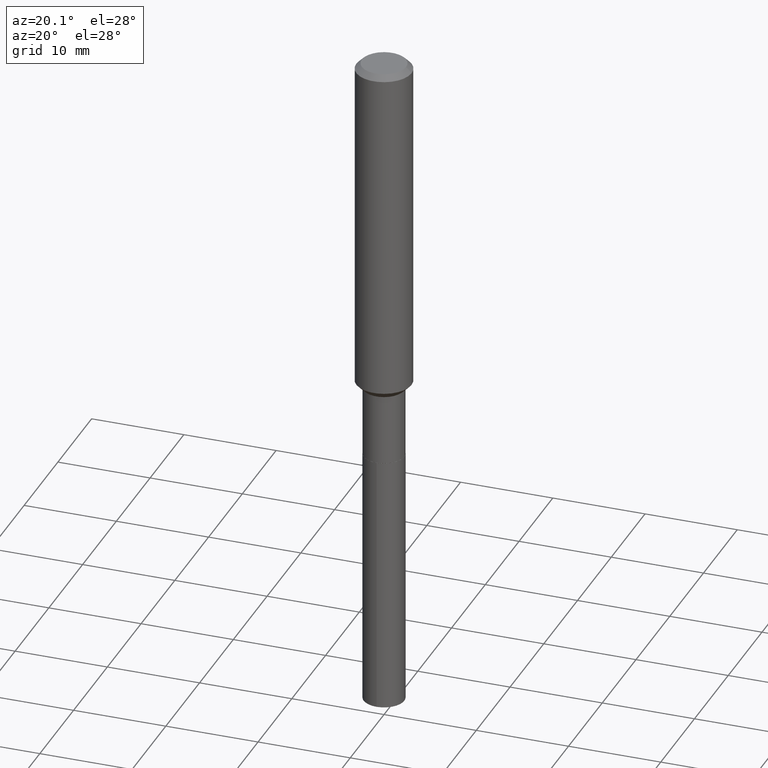
[diagram: clean part render]
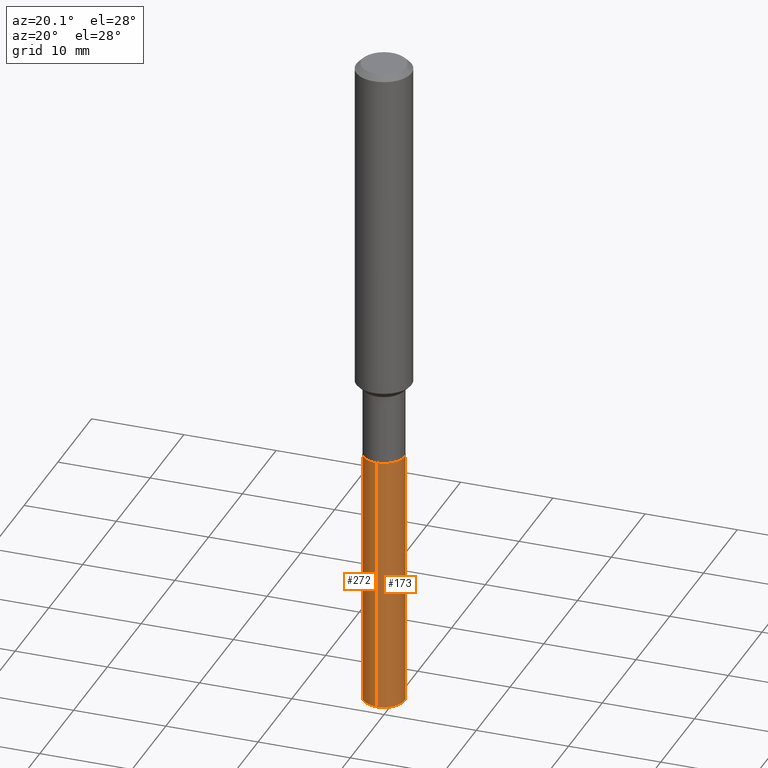
[diagram: same view with one multi-face feature highlighted, each face labeled with its STEP entity id]
A machine part, auxiliary view. The highlighted faces form ONE feature: a constant-radius fillet chain: 2 tangent blend faces with common blend radius 2.1996 mm. The faces share edges in the B-rep.
Their STEP definitions:
[1] entity #173 (Cylinder):
#12 = VERTEX_POINT ( 'NONE', #433 ) ;
#30 = AXIS2_PLACEMENT_3D ( 'NONE', #315, #443, #428 ) ;
#44 = DIRECTION ( 'NONE',  ( -2.445392125264201489E-29, 3.491591150286331850E-15, 1.000000000000000000 ) ) ;
#46 = VECTOR ( 'NONE', #154, 39.37007874015748143 ) ;
#49 = CYLINDRICAL_SURFACE ( 'NONE', #229, 0.08659999999999998255 ) ;
#56 = EDGE_CURVE ( 'NONE', #12, #451, #187, .T. ) ;
#74 = CARTESIAN_POINT ( 'NONE',  ( 6.153300091683170428E-16, 0.08659999999999380693, -1.771300000000000097 ) ) ;
#93 = CARTESIAN_POINT ( 'NONE',  ( 7.040144287003795958E-29, -1.005170309473941622E-14, -2.878887352811745348 ) ) ;
#111 = VECTOR ( 'NONE', #44, 39.37007874015748143 ) ;
#154 = DIRECTION ( 'NONE',  ( -2.445392125264201489E-29, 3.491591150286331850E-15, 1.000000000000000000 ) ) ;
#157 = DIRECTION ( 'NONE',  ( -2.445392125264201489E-29, 3.491591150286331850E-15, 1.000000000000000000 ) ) ;
#171 = CIRCLE ( 'NONE', #30, 0.08659999999999998255 ) ;
#173 = ADVANCED_FACE ( 'NONE', ( #381 ), #49, .T. ) ;
#179 = CARTESIAN_POINT ( 'NONE',  ( 6.153300091682898271E-16, 0.08659999999999380693, -1.771300000000000097 ) ) ;
#186 = CARTESIAN_POINT ( 'NONE',  ( 4.331658896395732410E-29, -6.184460895492863090E-15, -1.771299999999999653 ) ) ;
#187 = LINE ( 'NONE', #343, #46 ) ;
#189 = ORIENTED_EDGE ( 'NONE', *, *, #246, .F. ) ;
#197 = DIRECTION ( 'NONE',  ( -6.982962677686265922E-15, -1.000000000000000000, 3.154558884138872662E-15 ) ) ;
#205 = DIRECTION ( 'NONE',  ( -6.982962677686265922E-15, -1.000000000000000000, 6.309117768277745325E-15 ) ) ;
#212 = ORIENTED_EDGE ( 'NONE', *, *, #379, .T. ) ;
#218 = LINE ( 'NONE', #179, #111 ) ;
#229 = AXIS2_PLACEMENT_3D ( 'NONE', #186, #157, #197 ) ;
#238 = CIRCLE ( 'NONE', #369, 0.08659999999999998255 ) ;
#246 = EDGE_CURVE ( 'NONE', #451, #352, #171, .T. ) ;
#268 = EDGE_LOOP ( 'NONE', ( #309, #212, #189, #325 ) ) ;
#309 = ORIENTED_EDGE ( 'NONE', *, *, #328, .T. ) ;
#315 = CARTESIAN_POINT ( 'NONE',  ( 4.331658896395732410E-29, -6.184460895492863090E-15, -1.771299999999999653 ) ) ;
#325 = ORIENTED_EDGE ( 'NONE', *, *, #56, .F. ) ;
#328 = EDGE_CURVE ( 'NONE', #12, #417, #238, .T. ) ;
#343 = CARTESIAN_POINT ( 'NONE',  ( -6.047245678875872412E-16, -0.08660000000000617204, -1.771299999999999430 ) ) ;
#347 = CARTESIAN_POINT ( 'NONE',  ( -6.047245678875872412E-16, -0.08660000000000617204, -1.771299999999999430 ) ) ;
#352 = VERTEX_POINT ( 'NONE', #74 ) ;
#369 = AXIS2_PLACEMENT_3D ( 'NONE', #93, #434, #205 ) ;
#379 = EDGE_CURVE ( 'NONE', #417, #352, #218, .T. ) ;
#381 = FACE_OUTER_BOUND ( 'NONE', #268, .T. ) ;
#417 = VERTEX_POINT ( 'NONE', #435 ) ;
#428 = DIRECTION ( 'NONE',  ( -6.982962677686265922E-15, -1.000000000000000000, 3.154558884138872662E-15 ) ) ;
#433 = CARTESIAN_POINT ( 'NONE',  ( -6.047245678875604199E-16, -0.08660000000001008558, -2.878887352811744460 ) ) ;
#434 = DIRECTION ( 'NONE',  ( -2.445392125264201489E-29, 3.491591150286331850E-15, 1.000000000000000000 ) ) ;
#435 = CARTESIAN_POINT ( 'NONE',  ( 6.153300091683173386E-16, 0.08659999999998996278, -2.878887352811745792 ) ) ;
#443 = DIRECTION ( 'NONE',  ( -2.445392125264201489E-29, 3.491591150286331850E-15, 1.000000000000000000 ) ) ;
#451 = VERTEX_POINT ( 'NONE', #347 ) ;
[2] entity #272 (Cylinder):
#12 = VERTEX_POINT ( 'NONE', #433 ) ;
#19 = ORIENTED_EDGE ( 'NONE', *, *, #98, .T. ) ;
#31 = DIRECTION ( 'NONE',  ( -2.445392125264201489E-29, 3.491591150286331850E-15, 1.000000000000000000 ) ) ;
#39 = EDGE_CURVE ( 'NONE', #352, #451, #319, .T. ) ;
#44 = DIRECTION ( 'NONE',  ( -2.445392125264201489E-29, 3.491591150286331850E-15, 1.000000000000000000 ) ) ;
#46 = VECTOR ( 'NONE', #154, 39.37007874015748143 ) ;
#48 = ORIENTED_EDGE ( 'NONE', *, *, #56, .T. ) ;
#56 = EDGE_CURVE ( 'NONE', #12, #451, #187, .T. ) ;
#74 = CARTESIAN_POINT ( 'NONE',  ( 6.153300091683170428E-16, 0.08659999999999380693, -1.771300000000000097 ) ) ;
#98 = EDGE_CURVE ( 'NONE', #417, #12, #460, .T. ) ;
#110 = DIRECTION ( 'NONE',  ( -6.982962677686265922E-15, -1.000000000000000000, 3.154558884138872662E-15 ) ) ;
#111 = VECTOR ( 'NONE', #44, 39.37007874015748143 ) ;
#129 = AXIS2_PLACEMENT_3D ( 'NONE', #473, #31, #275 ) ;
#151 = DIRECTION ( 'NONE',  ( -2.445392125264201489E-29, 3.491591150286331850E-15, 1.000000000000000000 ) ) ;
#154 = DIRECTION ( 'NONE',  ( -2.445392125264201489E-29, 3.491591150286331850E-15, 1.000000000000000000 ) ) ;
#179 = CARTESIAN_POINT ( 'NONE',  ( 6.153300091682898271E-16, 0.08659999999999380693, -1.771300000000000097 ) ) ;
#187 = LINE ( 'NONE', #343, #46 ) ;
#218 = LINE ( 'NONE', #179, #111 ) ;
#219 = CARTESIAN_POINT ( 'NONE',  ( 4.331658896395732410E-29, -6.184460895492863090E-15, -1.771299999999999653 ) ) ;
#222 = AXIS2_PLACEMENT_3D ( 'NONE', #219, #237, #370 ) ;
#237 = DIRECTION ( 'NONE',  ( -2.445392125264201489E-29, 3.491591150286331850E-15, 1.000000000000000000 ) ) ;
#252 = AXIS2_PLACEMENT_3D ( 'NONE', #355, #151, #110 ) ;
#272 = ADVANCED_FACE ( 'NONE', ( #299 ), #332, .T. ) ;
#275 = DIRECTION ( 'NONE',  ( -6.982962677686265922E-15, -1.000000000000000000, 6.309117768277745325E-15 ) ) ;
#299 = FACE_OUTER_BOUND ( 'NONE', #329, .T. ) ;
#319 = CIRCLE ( 'NONE', #252, 0.08659999999999998255 ) ;
#329 = EDGE_LOOP ( 'NONE', ( #468, #19, #48, #362 ) ) ;
#332 = CYLINDRICAL_SURFACE ( 'NONE', #222, 0.08659999999999998255 ) ;
#343 = CARTESIAN_POINT ( 'NONE',  ( -6.047245678875872412E-16, -0.08660000000000617204, -1.771299999999999430 ) ) ;
#347 = CARTESIAN_POINT ( 'NONE',  ( -6.047245678875872412E-16, -0.08660000000000617204, -1.771299999999999430 ) ) ;
#352 = VERTEX_POINT ( 'NONE', #74 ) ;
#355 = CARTESIAN_POINT ( 'NONE',  ( 4.331658896395732410E-29, -6.184460895492863090E-15, -1.771299999999999653 ) ) ;
#362 = ORIENTED_EDGE ( 'NONE', *, *, #39, .F. ) ;
#370 = DIRECTION ( 'NONE',  ( -6.982962677686265922E-15, -1.000000000000000000, 3.154558884138872662E-15 ) ) ;
#379 = EDGE_CURVE ( 'NONE', #417, #352, #218, .T. ) ;
#417 = VERTEX_POINT ( 'NONE', #435 ) ;
#433 = CARTESIAN_POINT ( 'NONE',  ( -6.047245678875604199E-16, -0.08660000000001008558, -2.878887352811744460 ) ) ;
#435 = CARTESIAN_POINT ( 'NONE',  ( 6.153300091683173386E-16, 0.08659999999998996278, -2.878887352811745792 ) ) ;
#451 = VERTEX_POINT ( 'NONE', #347 ) ;
#460 = CIRCLE ( 'NONE', #129, 0.08659999999999998255 ) ;
#468 = ORIENTED_EDGE ( 'NONE', *, *, #379, .F. ) ;
#473 = CARTESIAN_POINT ( 'NONE',  ( 7.040144287003795958E-29, -1.005170309473941622E-14, -2.878887352811745348 ) ) ;